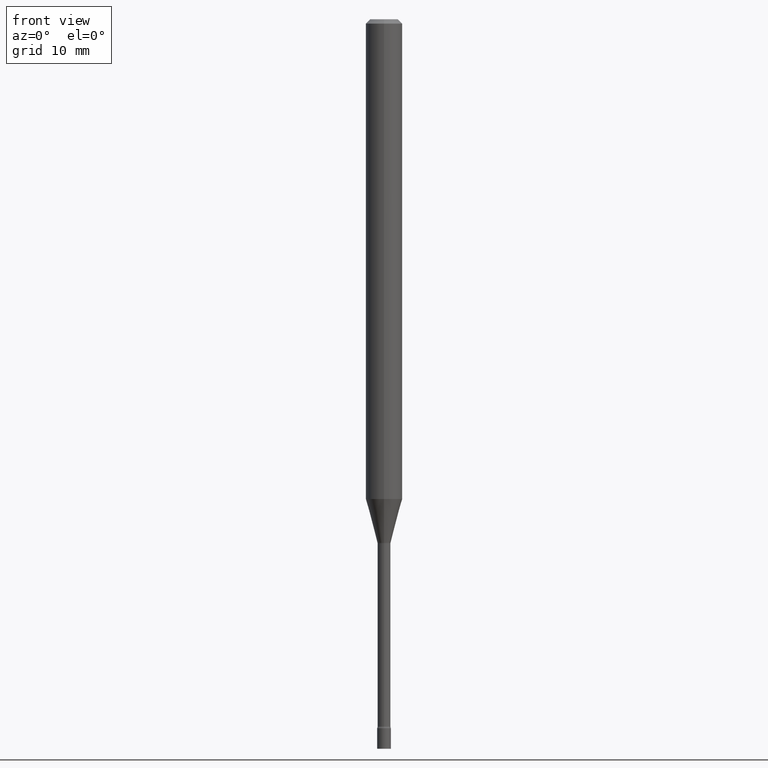
[diagram: clean part render]
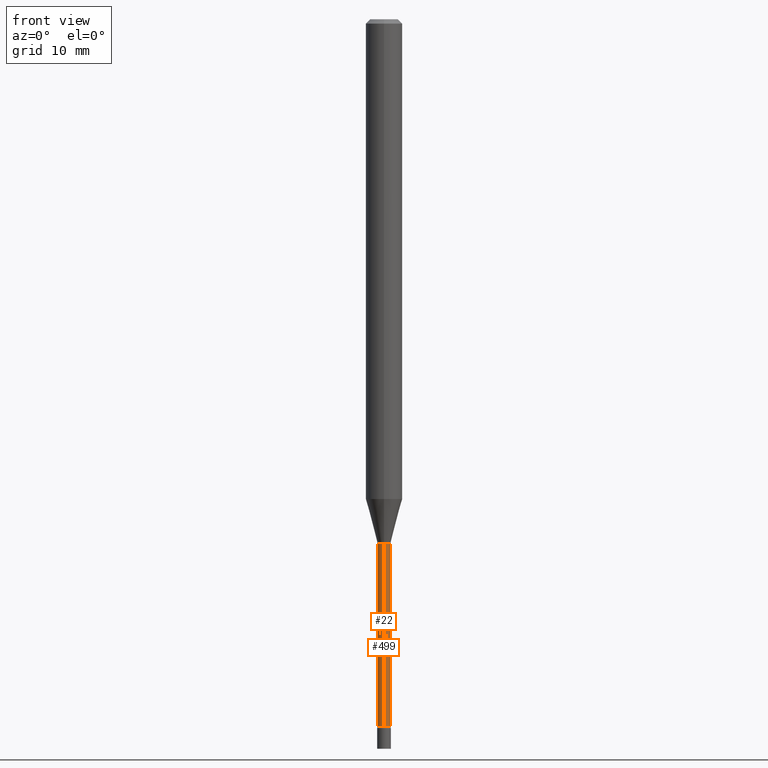
[diagram: same view with one multi-face feature highlighted, each face labeled with its STEP entity id]
A machine part, front view. The highlighted faces form ONE feature: a constant-radius fillet chain: 2 tangent blend faces with common blend radius 0.5613 mm. The faces share edges in the B-rep.
Their STEP definitions:
[1] entity #22 (Cylinder):
#2 = VECTOR ( 'NONE', #230, 39.37007874015748143 ) ;
#6 = LINE ( 'NONE', #171, #2 ) ;
#9 = CIRCLE ( 'NONE', #320, 0.02210000000000007098 ) ;
#11 = LINE ( 'NONE', #492, #235 ) ;
#20 = VERTEX_POINT ( 'NONE', #520 ) ;
#22 = ADVANCED_FACE ( 'NONE', ( #73 ), #153, .T. ) ;
#37 = CARTESIAN_POINT ( 'NONE',  ( -1.543234751768225325E-16, -0.02210000000000627435, -1.796974787463811118 ) ) ;
#43 = CARTESIAN_POINT ( 'NONE',  ( 5.924547833782153992E-29, -8.458746088650004538E-15, -2.422672283192177645 ) ) ;
#61 = DIRECTION ( 'NONE',  ( -6.982962677686265133E-15, -1.000000000000000000, 0.000000000000000000 ) ) ;
#73 = FACE_OUTER_BOUND ( 'NONE', #502, .T. ) ;
#74 = EDGE_CURVE ( 'NONE', #141, #101, #95, .T. ) ;
#78 = DIRECTION ( 'NONE',  ( -6.982962677686265922E-15, -1.000000000000000000, 3.491494143609276784E-15 ) ) ;
#95 = CIRCLE ( 'NONE', #371, 0.02210000000000000159 ) ;
#101 = VERTEX_POINT ( 'NONE', #37 ) ;
#112 = CARTESIAN_POINT ( 'NONE',  ( 0.000000000000000000, 0.000000000000000000, 0.000000000000000000 ) ) ;
#116 = CARTESIAN_POINT ( 'NONE',  ( 4.394429720557197382E-29, -6.274126946643421115E-15, -1.796974787463811118 ) ) ;
#122 = DIRECTION ( 'NONE',  ( -2.445459864664737566E-29, 3.491494143609276784E-15, 1.000000000000000000 ) ) ;
#141 = VERTEX_POINT ( 'NONE', #158 ) ;
#153 = CYLINDRICAL_SURFACE ( 'NONE', #154, 0.02210000000000003628 ) ;
#154 = AXIS2_PLACEMENT_3D ( 'NONE', #112, #122, #78 ) ;
#158 = CARTESIAN_POINT ( 'NONE',  ( 1.570299446030415881E-16, 0.02209999999999372536, -1.796974787463811118 ) ) ;
#166 = EDGE_CURVE ( 'NONE', #20, #141, #6, .T. ) ;
#171 = CARTESIAN_POINT ( 'NONE',  ( 1.570299446029823742E-16, 0.02210000000000003628, -7.716202057376514729E-17 ) ) ;
#216 = EDGE_CURVE ( 'NONE', #20, #459, #9, .T. ) ;
#226 = ORIENTED_EDGE ( 'NONE', *, *, #216, .T. ) ;
#230 = DIRECTION ( 'NONE',  ( -2.445459864664737566E-29, 3.491494143609276390E-15, 1.000000000000000000 ) ) ;
#232 = ORIENTED_EDGE ( 'NONE', *, *, #484, .T. ) ;
#235 = VECTOR ( 'NONE', #336, 39.37007874015748143 ) ;
#286 = ORIENTED_EDGE ( 'NONE', *, *, #166, .F. ) ;
#295 = DIRECTION ( 'NONE',  ( -2.445459864664737566E-29, 3.491494143609276784E-15, 1.000000000000000000 ) ) ;
#320 = AXIS2_PLACEMENT_3D ( 'NONE', #43, #295, #61 ) ;
#336 = DIRECTION ( 'NONE',  ( -2.445459864664737566E-29, 3.491494143609276390E-15, 1.000000000000000000 ) ) ;
#371 = AXIS2_PLACEMENT_3D ( 'NONE', #116, #478, #400 ) ;
#400 = DIRECTION ( 'NONE',  ( -6.982962677686265922E-15, -1.000000000000000000, 0.000000000000000000 ) ) ;
#455 = ORIENTED_EDGE ( 'NONE', *, *, #74, .F. ) ;
#456 = CARTESIAN_POINT ( 'NONE',  ( -1.543234751768077413E-16, -0.02210000000000852949, -2.422672283192177645 ) ) ;
#459 = VERTEX_POINT ( 'NONE', #456 ) ;
#478 = DIRECTION ( 'NONE',  ( -2.445459864664737566E-29, 3.491494143609276784E-15, 1.000000000000000000 ) ) ;
#484 = EDGE_CURVE ( 'NONE', #459, #101, #11, .T. ) ;
#492 = CARTESIAN_POINT ( 'NONE',  ( -1.543234751768667333E-16, -0.02210000000000003628, 7.716202057376514729E-17 ) ) ;
#502 = EDGE_LOOP ( 'NONE', ( #286, #226, #232, #455 ) ) ;
#520 = CARTESIAN_POINT ( 'NONE',  ( 1.620037437533623579E-16, 0.02209999999999160900, -2.422672283192177645 ) ) ;
[2] entity #499 (Cylinder):
#2 = VECTOR ( 'NONE', #230, 39.37007874015748143 ) ;
#6 = LINE ( 'NONE', #171, #2 ) ;
#11 = LINE ( 'NONE', #492, #235 ) ;
#13 = CYLINDRICAL_SURFACE ( 'NONE', #325, 0.02210000000000003628 ) ;
#20 = VERTEX_POINT ( 'NONE', #520 ) ;
#21 = ORIENTED_EDGE ( 'NONE', *, *, #484, .F. ) ;
#37 = CARTESIAN_POINT ( 'NONE',  ( -1.543234751768225325E-16, -0.02210000000000627435, -1.796974787463811118 ) ) ;
#62 = DIRECTION ( 'NONE',  ( -6.982962677686265922E-15, -1.000000000000000000, 3.491494143609276784E-15 ) ) ;
#69 = ORIENTED_EDGE ( 'NONE', *, *, #345, .T. ) ;
#72 = AXIS2_PLACEMENT_3D ( 'NONE', #307, #470, #104 ) ;
#80 = CIRCLE ( 'NONE', #411, 0.02210000000000000159 ) ;
#101 = VERTEX_POINT ( 'NONE', #37 ) ;
#104 = DIRECTION ( 'NONE',  ( -6.982962677686265133E-15, -1.000000000000000000, 0.000000000000000000 ) ) ;
#141 = VERTEX_POINT ( 'NONE', #158 ) ;
#143 = DIRECTION ( 'NONE',  ( -2.445459864664737566E-29, 3.491494143609276784E-15, 1.000000000000000000 ) ) ;
#158 = CARTESIAN_POINT ( 'NONE',  ( 1.570299446030415881E-16, 0.02209999999999372536, -1.796974787463811118 ) ) ;
#166 = EDGE_CURVE ( 'NONE', #20, #141, #6, .T. ) ;
#168 = CARTESIAN_POINT ( 'NONE',  ( 0.000000000000000000, 0.000000000000000000, 0.000000000000000000 ) ) ;
#171 = CARTESIAN_POINT ( 'NONE',  ( 1.570299446029823742E-16, 0.02210000000000003628, -7.716202057376514729E-17 ) ) ;
#178 = EDGE_LOOP ( 'NONE', ( #69, #306, #253, #21 ) ) ;
#206 = DIRECTION ( 'NONE',  ( -2.445459864664737566E-29, 3.491494143609276784E-15, 1.000000000000000000 ) ) ;
#230 = DIRECTION ( 'NONE',  ( -2.445459864664737566E-29, 3.491494143609276390E-15, 1.000000000000000000 ) ) ;
#235 = VECTOR ( 'NONE', #336, 39.37007874015748143 ) ;
#253 = ORIENTED_EDGE ( 'NONE', *, *, #454, .F. ) ;
#282 = DIRECTION ( 'NONE',  ( -6.982962677686265922E-15, -1.000000000000000000, 0.000000000000000000 ) ) ;
#306 = ORIENTED_EDGE ( 'NONE', *, *, #166, .T. ) ;
#307 = CARTESIAN_POINT ( 'NONE',  ( 5.924547833782153992E-29, -8.458746088650004538E-15, -2.422672283192177645 ) ) ;
#325 = AXIS2_PLACEMENT_3D ( 'NONE', #168, #143, #62 ) ;
#336 = DIRECTION ( 'NONE',  ( -2.445459864664737566E-29, 3.491494143609276390E-15, 1.000000000000000000 ) ) ;
#345 = EDGE_CURVE ( 'NONE', #459, #20, #505, .T. ) ;
#368 = FACE_OUTER_BOUND ( 'NONE', #178, .T. ) ;
#411 = AXIS2_PLACEMENT_3D ( 'NONE', #412, #206, #282 ) ;
#412 = CARTESIAN_POINT ( 'NONE',  ( 4.394429720557197382E-29, -6.274126946643421115E-15, -1.796974787463811118 ) ) ;
#454 = EDGE_CURVE ( 'NONE', #101, #141, #80, .T. ) ;
#456 = CARTESIAN_POINT ( 'NONE',  ( -1.543234751768077413E-16, -0.02210000000000852949, -2.422672283192177645 ) ) ;
#459 = VERTEX_POINT ( 'NONE', #456 ) ;
#470 = DIRECTION ( 'NONE',  ( -2.445459864664737566E-29, 3.491494143609276784E-15, 1.000000000000000000 ) ) ;
#484 = EDGE_CURVE ( 'NONE', #459, #101, #11, .T. ) ;
#492 = CARTESIAN_POINT ( 'NONE',  ( -1.543234751768667333E-16, -0.02210000000000003628, 7.716202057376514729E-17 ) ) ;
#499 = ADVANCED_FACE ( 'NONE', ( #368 ), #13, .T. ) ;
#505 = CIRCLE ( 'NONE', #72, 0.02210000000000007098 ) ;
#520 = CARTESIAN_POINT ( 'NONE',  ( 1.620037437533623579E-16, 0.02209999999999160900, -2.422672283192177645 ) ) ;